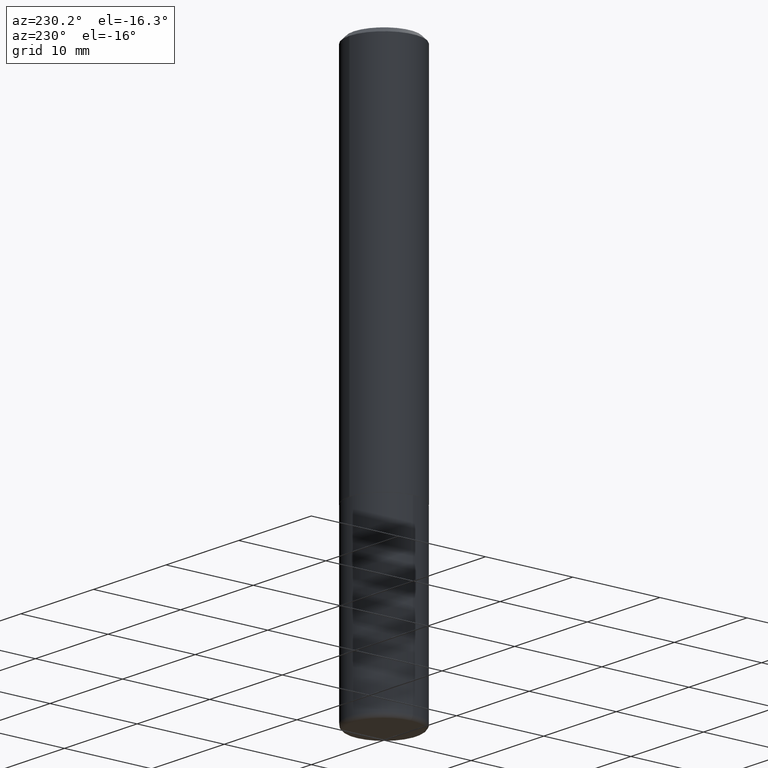
[diagram: clean part render]
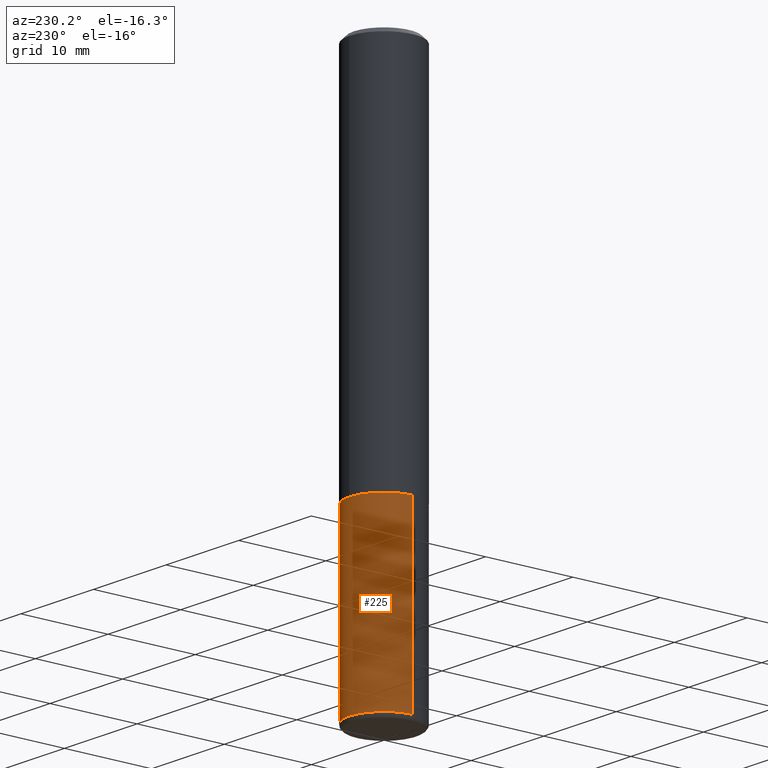
[diagram: same view with one face highlighted and labeled with its STEP entity id]
A machine part, auxiliary view. The second image highlights one B-rep face of the part: STEP entity #225.
In plain terms, the highlighted cylindrical surface (partial cylindrical patch) has radius 3.9688 mm, axis along (-0, 0, 1).
Its self-contained STEP definition (entity closure, byte-faithful):
#7 = AXIS2_PLACEMENT_3D ( 'NONE', #246, #51, #118 ) ;
#11 = ORIENTED_EDGE ( 'NONE', *, *, #135, .F. ) ;
#19 = VERTEX_POINT ( 'NONE', #76 ) ;
#51 = DIRECTION ( 'NONE',  ( -2.445468806185136597E-29, 3.491481338843145583E-15, 1.000000000000000000 ) ) ;
#56 = CARTESIAN_POINT ( 'NONE',  ( 0.1562500000000000000, -1.091087918388479174E-15, 7.619026212181150377E-30 ) ) ;
#70 = ORIENTED_EDGE ( 'NONE', *, *, #253, .T. ) ;
#76 = CARTESIAN_POINT ( 'NONE',  ( 0.1562500000000000000, -6.981216937016868084E-15, -1.687000000000000277 ) ) ;
#78 = CARTESIAN_POINT ( 'NONE',  ( 0.000000000000000000, 0.000000000000000000, 0.000000000000000000 ) ) ;
#83 = ORIENTED_EDGE ( 'NONE', *, *, #162, .F. ) ;
#101 = VERTEX_POINT ( 'NONE', #278 ) ;
#102 = CARTESIAN_POINT ( 'NONE',  ( -0.1562500000000000000, 1.110223024625156540E-15, -7.685836078523291160E-30 ) ) ;
#112 = FACE_OUTER_BOUND ( 'NONE', #159, .T. ) ;
#118 = DIRECTION ( 'NONE',  ( 1.000000000000000000, -6.982962677686269077E-15, 0.000000000000000000 ) ) ;
#133 = VECTOR ( 'NONE', #409, 39.37007874015748143 ) ;
#135 = EDGE_CURVE ( 'NONE', #19, #101, #307, .T. ) ;
#159 = EDGE_LOOP ( 'NONE', ( #70, #176, #11, #83 ) ) ;
#162 = EDGE_CURVE ( 'NONE', #250, #19, #344, .T. ) ;
#175 = DIRECTION ( 'NONE',  ( 1.000000000000000000, -6.982962677686266711E-15, 4.876176775795936353E-29 ) ) ;
#176 = ORIENTED_EDGE ( 'NONE', *, *, #267, .T. ) ;
#197 = CARTESIAN_POINT ( 'NONE',  ( 6.064762639339139522E-29, -8.658873720331001644E-15, -2.480000000000000426 ) ) ;
#211 = VECTOR ( 'NONE', #413, 39.37007874015748143 ) ;
#212 = DIRECTION ( 'NONE',  ( -2.445468806185136597E-29, 3.491481338843145583E-15, 1.000000000000000000 ) ) ;
#223 = VERTEX_POINT ( 'NONE', #333 ) ;
#225 = ADVANCED_FACE ( 'NONE', ( #112 ), #364, .T. ) ;
#246 = CARTESIAN_POINT ( 'NONE',  ( 4.125505876034326327E-29, -5.890129018628388122E-15, -1.687000000000000277 ) ) ;
#250 = VERTEX_POINT ( 'NONE', #345 ) ;
#253 = EDGE_CURVE ( 'NONE', #250, #223, #325, .T. ) ;
#267 = EDGE_CURVE ( 'NONE', #223, #101, #391, .T. ) ;
#268 = AXIS2_PLACEMENT_3D ( 'NONE', #197, #338, #316 ) ;
#278 = CARTESIAN_POINT ( 'NONE',  ( -0.1562500000000000000, -6.164278344854539131E-15, -1.687000000000000277 ) ) ;
#307 = CIRCLE ( 'NONE', #7, 0.1562500000000000000 ) ;
#316 = DIRECTION ( 'NONE',  ( 1.000000000000000000, -6.982962677686262766E-15, 0.000000000000000000 ) ) ;
#317 = AXIS2_PLACEMENT_3D ( 'NONE', #78, #212, #175 ) ;
#325 = CIRCLE ( 'NONE', #268, 0.1562500000000000000 ) ;
#333 = CARTESIAN_POINT ( 'NONE',  ( -0.1562499999999999445, -7.548650695705845104E-15, -2.480000000000000426 ) ) ;
#338 = DIRECTION ( 'NONE',  ( -2.445468806185136597E-29, 3.491481338843145583E-15, 1.000000000000000000 ) ) ;
#344 = LINE ( 'NONE', #56, #211 ) ;
#345 = CARTESIAN_POINT ( 'NONE',  ( 0.1562499999999999445, -9.749961638719480029E-15, -2.480000000000000426 ) ) ;
#364 = CYLINDRICAL_SURFACE ( 'NONE', #317, 0.1562500000000000000 ) ;
#391 = LINE ( 'NONE', #102, #133 ) ;
#409 = DIRECTION ( 'NONE',  ( -2.445468806185136877E-29, 3.491481338843145188E-15, 1.000000000000000000 ) ) ;
#413 = DIRECTION ( 'NONE',  ( -2.445468806185136877E-29, 3.491481338843145188E-15, 1.000000000000000000 ) ) ;